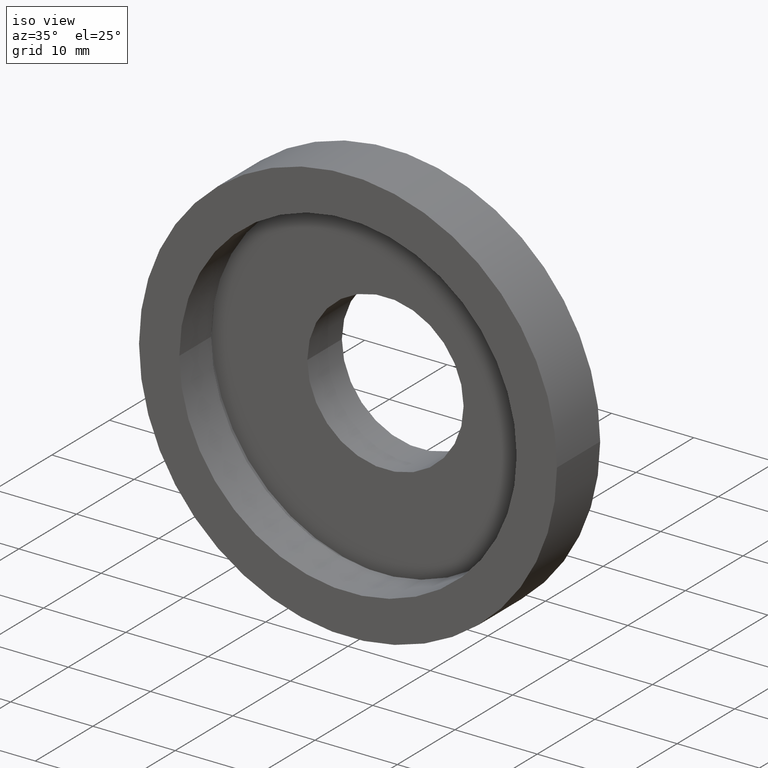
[diagram: clean part render]
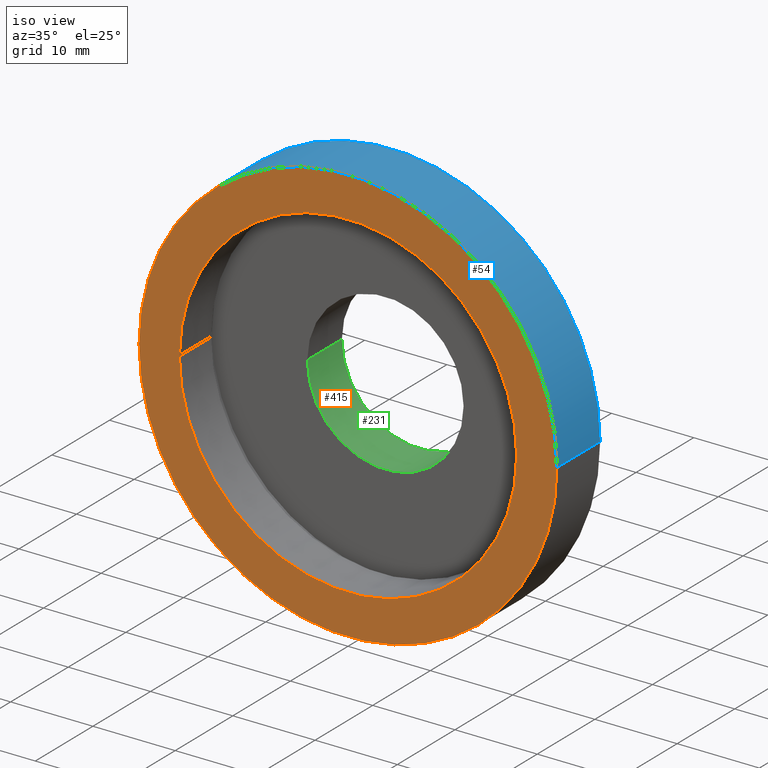
[diagram: same view with three faces highlighted in distinct colors, each labeled with its STEP entity id]
A machine part, iso view with three faces highlighted in distinct colors.
Their STEP definitions:

[orange] entity #415 — the highlighted planar face has unit normal (-0, 1, 0).
#58 = EDGE_CURVE ( 'NONE', #371, #478, #61, .T. ) ;
#61 = CIRCLE ( 'NONE', #511, 25.39999999999999500 ) ;
#68 = DIRECTION ( 'NONE',  ( -1.000000000000000000, -1.224646799147351000E-016, 0.0000000000000000000 ) ) ;
#101 = DIRECTION ( 'NONE',  ( -1.224646799147351000E-016, 1.000000000000000000, -0.0000000000000000000 ) ) ;
#138 = CARTESIAN_POINT ( 'NONE',  ( 2.067940818438636500E-015, -3.469446951953614200E-015, 0.0000000000000000000 ) ) ;
#140 = EDGE_LOOP ( 'NONE', ( #405, #305 ) ) ;
#142 = ORIENTED_EDGE ( 'NONE', *, *, #541, .T. ) ;
#161 = VERTEX_POINT ( 'NONE', #521 ) ;
#167 = CARTESIAN_POINT ( 'NONE',  ( 2.067940818438636500E-015, -3.469446951953614200E-015, 0.0000000000000000000 ) ) ;
#199 = FACE_BOUND ( 'NONE', #593, .T. ) ;
#256 = DIRECTION ( 'NONE',  ( -1.000000000000000000, -1.224646799147351000E-016, 0.0000000000000000000 ) ) ;
#257 = AXIS2_PLACEMENT_3D ( 'NONE', #167, #348, #256 ) ;
#277 = DIRECTION ( 'NONE',  ( -1.000000000000000000, -1.224646799147351200E-016, 0.0000000000000000000 ) ) ;
#305 = ORIENTED_EDGE ( 'NONE', *, *, #475, .F. ) ;
#309 = DIRECTION ( 'NONE',  ( -1.224646799147351000E-016, 1.000000000000000000, -0.0000000000000000000 ) ) ;
#320 = DIRECTION ( 'NONE',  ( -1.000000000000000000, -1.224646799147351000E-016, 0.0000000000000000000 ) ) ;
#348 = DIRECTION ( 'NONE',  ( -1.224646799147351000E-016, 1.000000000000000000, -0.0000000000000000000 ) ) ;
#361 = CIRCLE ( 'NONE', #483, 20.50000000000000000 ) ;
#371 = VERTEX_POINT ( 'NONE', #523 ) ;
#387 = CARTESIAN_POINT ( 'NONE',  ( 2.067940818438636500E-015, -3.469446951953614200E-015, 0.0000000000000000000 ) ) ;
#405 = ORIENTED_EDGE ( 'NONE', *, *, #58, .F. ) ;
#408 = DIRECTION ( 'NONE',  ( -1.224646799147351000E-016, 1.000000000000000000, 0.0000000000000000000 ) ) ;
#415 = ADVANCED_FACE ( 'NONE', ( #500, #199 ), #446, .F. ) ;
#438 = EDGE_CURVE ( 'NONE', #161, #451, #517, .T. ) ;
#446 = PLANE ( 'NONE',  #597 ) ;
#451 = VERTEX_POINT ( 'NONE', #588 ) ;
#471 = ORIENTED_EDGE ( 'NONE', *, *, #438, .T. ) ;
#475 = EDGE_CURVE ( 'NONE', #478, #371, #608, .T. ) ;
#478 = VERTEX_POINT ( 'NONE', #525 ) ;
#483 = AXIS2_PLACEMENT_3D ( 'NONE', #138, #101, #277 ) ;
#500 = FACE_OUTER_BOUND ( 'NONE', #140, .T. ) ;
#511 = AXIS2_PLACEMENT_3D ( 'NONE', #387, #309, #320 ) ;
#517 = CIRCLE ( 'NONE', #559, 20.50000000000000000 ) ;
#521 = CARTESIAN_POINT ( 'NONE',  ( 20.50000000000000400, -9.589210137015444400E-016, 2.510525938252074500E-015 ) ) ;
#523 = CARTESIAN_POINT ( 'NONE',  ( -25.39999999999999100, -6.580049821787884700E-015, 0.0000000000000000000 ) ) ;
#525 = CARTESIAN_POINT ( 'NONE',  ( 25.39999999999999900, -3.588440821193433400E-016, 3.110602869834276900E-015 ) ) ;
#541 = EDGE_CURVE ( 'NONE', #451, #161, #361, .T. ) ;
#559 = AXIS2_PLACEMENT_3D ( 'NONE', #575, #596, #566 ) ;
#566 = DIRECTION ( 'NONE',  ( -1.000000000000000000, -1.224646799147351200E-016, 0.0000000000000000000 ) ) ;
#575 = CARTESIAN_POINT ( 'NONE',  ( 2.067940818438636500E-015, -3.469446951953614200E-015, 0.0000000000000000000 ) ) ;
#588 = CARTESIAN_POINT ( 'NONE',  ( -20.49999999999999600, -5.979972890205683900E-015, 0.0000000000000000000 ) ) ;
#593 = EDGE_LOOP ( 'NONE', ( #142, #471 ) ) ;
#596 = DIRECTION ( 'NONE',  ( -1.224646799147351000E-016, 1.000000000000000000, -0.0000000000000000000 ) ) ;
#597 = AXIS2_PLACEMENT_3D ( 'NONE', #609, #408, #68 ) ;
#608 = CIRCLE ( 'NONE', #257, 25.39999999999999500 ) ;
#609 = CARTESIAN_POINT ( 'NONE',  ( 25.39999999999999900, -7.703719777548943400E-031, 0.0000000000000000000 ) ) ;

[blue] entity #54 — the highlighted cylindrical surface (partial cylindrical patch) has radius 25.4 mm, axis along (-0, 1, -0).
#53 = VECTOR ( 'NONE', #118, 1000.000000000000000 ) ;
#54 = ADVANCED_FACE ( 'NONE', ( #548 ), #286, .T. ) ;
#58 = EDGE_CURVE ( 'NONE', #371, #478, #61, .T. ) ;
#61 = CIRCLE ( 'NONE', #511, 25.39999999999999500 ) ;
#100 = DIRECTION ( 'NONE',  ( -1.224646799147351000E-016, 1.000000000000000000, -0.0000000000000000000 ) ) ;
#118 = DIRECTION ( 'NONE',  ( -1.224646799147351000E-016, 1.000000000000000000, -0.0000000000000000000 ) ) ;
#125 = ORIENTED_EDGE ( 'NONE', *, *, #482, .F. ) ;
#181 = CARTESIAN_POINT ( 'NONE',  ( 1.149455719078123100E-015, 7.499999999999996400, 0.0000000000000000000 ) ) ;
#206 = CARTESIAN_POINT ( 'NONE',  ( 25.39999999999999900, 7.500000000000000000, 3.110602869834276900E-015 ) ) ;
#215 = DIRECTION ( 'NONE',  ( -1.224646799147351000E-016, 1.000000000000000000, -0.0000000000000000000 ) ) ;
#230 = AXIS2_PLACEMENT_3D ( 'NONE', #181, #215, #567 ) ;
#240 = EDGE_LOOP ( 'NONE', ( #589, #518, #125, #363 ) ) ;
#269 = CARTESIAN_POINT ( 'NONE',  ( -25.39999999999999900, 16.88601823708207300, 0.0000000000000000000 ) ) ;
#286 = CYLINDRICAL_SURFACE ( 'NONE', #580, 25.39999999999999900 ) ;
#289 = DIRECTION ( 'NONE',  ( -1.000000000000000000, -1.365923996832131600E-016, 0.0000000000000000000 ) ) ;
#300 = LINE ( 'NONE', #339, #401 ) ;
#309 = DIRECTION ( 'NONE',  ( -1.224646799147351000E-016, 1.000000000000000000, -0.0000000000000000000 ) ) ;
#320 = DIRECTION ( 'NONE',  ( -1.000000000000000000, -1.224646799147351000E-016, 0.0000000000000000000 ) ) ;
#339 = CARTESIAN_POINT ( 'NONE',  ( 25.39999999999999900, 16.88601823708208000, 3.110602869834276900E-015 ) ) ;
#363 = ORIENTED_EDGE ( 'NONE', *, *, #375, .F. ) ;
#371 = VERTEX_POINT ( 'NONE', #523 ) ;
#375 = EDGE_CURVE ( 'NONE', #371, #412, #487, .T. ) ;
#387 = CARTESIAN_POINT ( 'NONE',  ( 2.067940818438636500E-015, -3.469446951953614200E-015, 0.0000000000000000000 ) ) ;
#401 = VECTOR ( 'NONE', #100, 1000.000000000000000 ) ;
#406 = DIRECTION ( 'NONE',  ( -1.224646799147351000E-016, 1.000000000000000000, -0.0000000000000000000 ) ) ;
#412 = VERTEX_POINT ( 'NONE', #455 ) ;
#455 = CARTESIAN_POINT ( 'NONE',  ( -25.39999999999999900, 7.499999999999992900, 0.0000000000000000000 ) ) ;
#478 = VERTEX_POINT ( 'NONE', #525 ) ;
#481 = VERTEX_POINT ( 'NONE', #206 ) ;
#482 = EDGE_CURVE ( 'NONE', #412, #481, #537, .T. ) ;
#487 = LINE ( 'NONE', #269, #53 ) ;
#498 = CARTESIAN_POINT ( 'NONE',  ( 0.0000000000000000000, 16.88601823708207700, 0.0000000000000000000 ) ) ;
#511 = AXIS2_PLACEMENT_3D ( 'NONE', #387, #309, #320 ) ;
#518 = ORIENTED_EDGE ( 'NONE', *, *, #582, .T. ) ;
#523 = CARTESIAN_POINT ( 'NONE',  ( -25.39999999999999100, -6.580049821787884700E-015, 0.0000000000000000000 ) ) ;
#525 = CARTESIAN_POINT ( 'NONE',  ( 25.39999999999999900, -3.588440821193433400E-016, 3.110602869834276900E-015 ) ) ;
#537 = CIRCLE ( 'NONE', #230, 25.39999999999999900 ) ;
#548 = FACE_OUTER_BOUND ( 'NONE', #240, .T. ) ;
#567 = DIRECTION ( 'NONE',  ( -1.000000000000000000, -1.365923996832131600E-016, 0.0000000000000000000 ) ) ;
#580 = AXIS2_PLACEMENT_3D ( 'NONE', #498, #406, #289 ) ;
#582 = EDGE_CURVE ( 'NONE', #478, #481, #300, .T. ) ;
#589 = ORIENTED_EDGE ( 'NONE', *, *, #58, .T. ) ;

[green] entity #231 — the highlighted cylindrical surface (partial cylindrical patch) has radius 9.5 mm, axis along (-0, 1, -0).
#11 = EDGE_CURVE ( 'NONE', #504, #350, #315, .T. ) ;
#21 = CIRCLE ( 'NONE', #28, 9.500000000000001800 ) ;
#28 = AXIS2_PLACEMENT_3D ( 'NONE', #35, #600, #464 ) ;
#35 = CARTESIAN_POINT ( 'NONE',  ( 5.371323195044473300E-016, 12.49999999999999600, 0.0000000000000000000 ) ) ;
#41 = ORIENTED_EDGE ( 'NONE', *, *, #82, .T. ) ;
#82 = EDGE_CURVE ( 'NONE', #504, #273, #312, .T. ) ;
#88 = EDGE_LOOP ( 'NONE', ( #259, #41, #509, #321 ) ) ;
#104 = CARTESIAN_POINT ( 'NONE',  ( 9.500000000000001800, 16.88601823708207700, 1.163414459189985700E-015 ) ) ;
#121 = CARTESIAN_POINT ( 'NONE',  ( 1.271920398992858000E-015, 6.499999999999997300, 0.0000000000000000000 ) ) ;
#131 = DIRECTION ( 'NONE',  ( -1.000000000000000000, 0.0000000000000000000, 0.0000000000000000000 ) ) ;
#143 = EDGE_CURVE ( 'NONE', #273, #591, #21, .T. ) ;
#189 = VECTOR ( 'NONE', #476, 1000.000000000000000 ) ;
#196 = CARTESIAN_POINT ( 'NONE',  ( -9.500000000000001800, 16.88601823708207700, 0.0000000000000000000 ) ) ;
#216 = CYLINDRICAL_SURFACE ( 'NONE', #400, 9.500000000000001800 ) ;
#231 = ADVANCED_FACE ( 'NONE', ( #291 ), #216, .F. ) ;
#232 = CARTESIAN_POINT ( 'NONE',  ( -9.499999999999998200, 6.499999999999996400, 0.0000000000000000000 ) ) ;
#239 = EDGE_CURVE ( 'NONE', #350, #591, #421, .T. ) ;
#259 = ORIENTED_EDGE ( 'NONE', *, *, #11, .F. ) ;
#273 = VERTEX_POINT ( 'NONE', #490 ) ;
#287 = CARTESIAN_POINT ( 'NONE',  ( -9.500000000000001800, 12.49999999999999500, 0.0000000000000000000 ) ) ;
#291 = FACE_OUTER_BOUND ( 'NONE', #88, .T. ) ;
#312 = LINE ( 'NONE', #104, #540 ) ;
#315 = CIRCLE ( 'NONE', #506, 9.500000000000000000 ) ;
#321 = ORIENTED_EDGE ( 'NONE', *, *, #239, .F. ) ;
#322 = DIRECTION ( 'NONE',  ( -1.224646799147351000E-016, 1.000000000000000000, -0.0000000000000000000 ) ) ;
#350 = VERTEX_POINT ( 'NONE', #232 ) ;
#368 = CARTESIAN_POINT ( 'NONE',  ( 9.500000000000001800, 6.499999999999998200, 1.163414459189985700E-015 ) ) ;
#400 = AXIS2_PLACEMENT_3D ( 'NONE', #507, #416, #131 ) ;
#416 = DIRECTION ( 'NONE',  ( -1.224646799147351000E-016, 1.000000000000000000, -0.0000000000000000000 ) ) ;
#421 = LINE ( 'NONE', #196, #189 ) ;
#425 = DIRECTION ( 'NONE',  ( -1.000000000000000000, -9.130123557772668300E-017, 0.0000000000000000000 ) ) ;
#464 = DIRECTION ( 'NONE',  ( -1.000000000000000000, -1.826024711554533400E-016, 0.0000000000000000000 ) ) ;
#476 = DIRECTION ( 'NONE',  ( -1.224646799147351000E-016, 1.000000000000000000, -0.0000000000000000000 ) ) ;
#490 = CARTESIAN_POINT ( 'NONE',  ( 9.500000000000001800, 12.49999999999999800, 1.163414459189985700E-015 ) ) ;
#504 = VERTEX_POINT ( 'NONE', #368 ) ;
#506 = AXIS2_PLACEMENT_3D ( 'NONE', #121, #322, #425 ) ;
#507 = CARTESIAN_POINT ( 'NONE',  ( 0.0000000000000000000, 16.88601823708207700, 0.0000000000000000000 ) ) ;
#509 = ORIENTED_EDGE ( 'NONE', *, *, #143, .T. ) ;
#540 = VECTOR ( 'NONE', #581, 1000.000000000000000 ) ;
#581 = DIRECTION ( 'NONE',  ( -1.224646799147351000E-016, 1.000000000000000000, -0.0000000000000000000 ) ) ;
#591 = VERTEX_POINT ( 'NONE', #287 ) ;
#600 = DIRECTION ( 'NONE',  ( -1.224646799147351000E-016, 1.000000000000000000, -0.0000000000000000000 ) ) ;